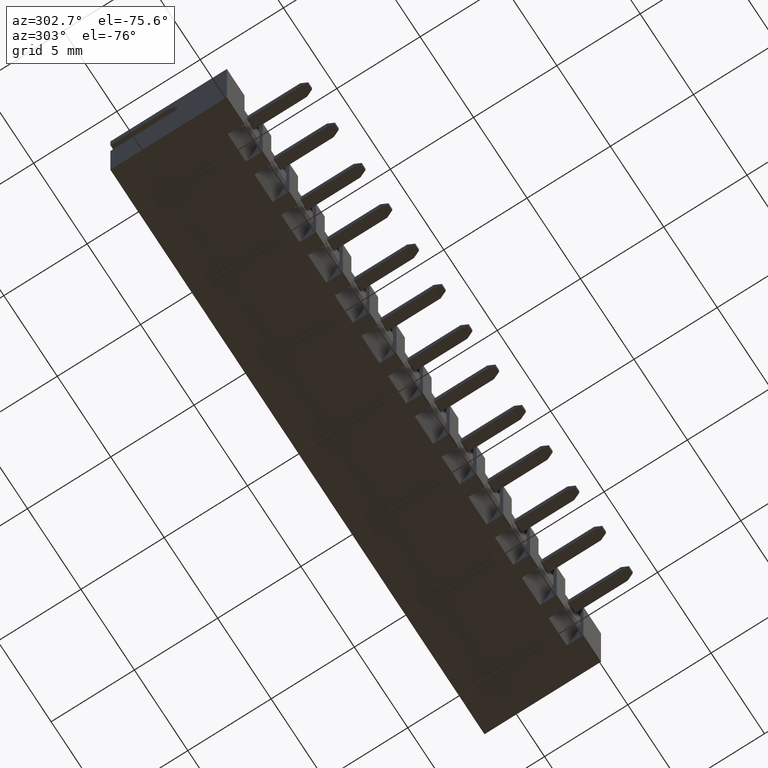
[diagram: clean part render]
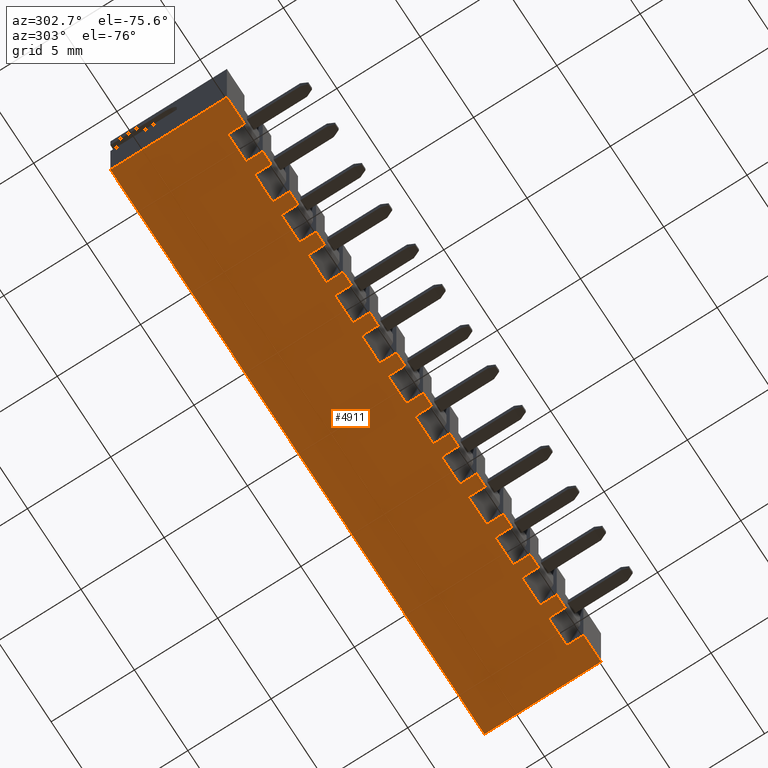
[diagram: same view with one face highlighted and labeled with its STEP entity id]
A machine part, auxiliary view. The second image highlights one B-rep face of the part: STEP entity #4911.
In plain terms, the highlighted planar face has unit normal (0, 0, 1).
Its self-contained STEP definition (entity closure, byte-faithful):
#3 = LINE ( 'NONE', #2143, #1955 ) ;
#20 = ORIENTED_EDGE ( 'NONE', *, *, #1837, .F. ) ;
#70 = VERTEX_POINT ( 'NONE', #2569 ) ;
#75 = EDGE_CURVE ( 'NONE', #5709, #2443, #1101, .T. ) ;
#116 = CARTESIAN_POINT ( 'NONE',  ( -17.49999999999999645, 7.000000000000000000, -2.875000000000000000 ) ) ;
#120 = EDGE_CURVE ( 'NONE', #2217, #2089, #3511, .T. ) ;
#126 = CARTESIAN_POINT ( 'NONE',  ( -9.149999999999993250, 1.000000000000000000, -2.875000000000000000 ) ) ;
#132 = DIRECTION ( 'NONE',  ( -0.000000000000000000, 1.000000000000000000, -0.000000000000000000 ) ) ;
#146 = CARTESIAN_POINT ( 'NONE',  ( -5.849999999999992539, 0.000000000000000000, -2.875000000000000000 ) ) ;
#149 = VECTOR ( 'NONE', #3602, 1000.000000000000000 ) ;
#169 = ORIENTED_EDGE ( 'NONE', *, *, #4397, .F. ) ;
#170 = CARTESIAN_POINT ( 'NONE',  ( -8.349999999999990763, 1.000000000000000000, -2.875000000000000000 ) ) ;
#192 = CARTESIAN_POINT ( 'NONE',  ( -5.849999999999992539, 1.000000000000000000, -2.875000000000000000 ) ) ;
#201 = CARTESIAN_POINT ( 'NONE',  ( -15.84999999999998899, 1.000000000000000000, -2.875000000000000000 ) ) ;
#206 = ORIENTED_EDGE ( 'NONE', *, *, #3687, .F. ) ;
#226 = AXIS2_PLACEMENT_3D ( 'NONE', #2868, #4925, #4518 ) ;
#253 = LINE ( 'NONE', #2921, #3143 ) ;
#271 = CARTESIAN_POINT ( 'NONE',  ( -3.349999999999993427, 1.000000000000000000, -2.875000000000000000 ) ) ;
#287 = VERTEX_POINT ( 'NONE', #3069 ) ;
#291 = VERTEX_POINT ( 'NONE', #661 ) ;
#322 = VERTEX_POINT ( 'NONE', #3333 ) ;
#329 = CARTESIAN_POINT ( 'NONE',  ( 3.350000000000007638, 1.000000000000000000, -2.875000000000000000 ) ) ;
#356 = CARTESIAN_POINT ( 'NONE',  ( -0.8499999999999913181, 1.000000000000000000, -2.875000000000000000 ) ) ;
#358 = CARTESIAN_POINT ( 'NONE',  ( 14.15000000000000568, 1.000000000000000000, -2.875000000000000000 ) ) ;
#371 = EDGE_CURVE ( 'NONE', #6492, #1381, #791, .T. ) ;
#382 = VECTOR ( 'NONE', #132, 1000.000000000000000 ) ;
#385 = LINE ( 'NONE', #3145, #3150 ) ;
#395 = CARTESIAN_POINT ( 'NONE',  ( -11.64999999999999147, 1.000000000000000000, -2.875000000000000000 ) ) ;
#396 = LINE ( 'NONE', #545, #1649 ) ;
#417 = EDGE_CURVE ( 'NONE', #704, #1278, #5144, .T. ) ;
#438 = LINE ( 'NONE', #1517, #3140 ) ;
#443 = LINE ( 'NONE', #1599, #149 ) ;
#472 = EDGE_CURVE ( 'NONE', #5907, #287, #5629, .T. ) ;
#491 = LINE ( 'NONE', #1079, #1751 ) ;
#523 = VECTOR ( 'NONE', #5255, 1000.000000000000000 ) ;
#525 = ORIENTED_EDGE ( 'NONE', *, *, #4555, .T. ) ;
#534 = VERTEX_POINT ( 'NONE', #1590 ) ;
#545 = CARTESIAN_POINT ( 'NONE',  ( 17.50000000000000711, 7.000000000000000000, -2.875000000000000000 ) ) ;
#550 = VERTEX_POINT ( 'NONE', #2273 ) ;
#559 = ORIENTED_EDGE ( 'NONE', *, *, #2533, .F. ) ;
#569 = VERTEX_POINT ( 'NONE', #146 ) ;
#570 = DIRECTION ( 'NONE',  ( 1.000000000000000000, -0.000000000000000000, -0.000000000000000000 ) ) ;
#578 = EDGE_CURVE ( 'NONE', #550, #2217, #653, .T. ) ;
#598 = EDGE_CURVE ( 'NONE', #3893, #2089, #1790, .T. ) ;
#631 = VECTOR ( 'NONE', #3080, 1000.000000000000000 ) ;
#653 = LINE ( 'NONE', #6432, #3705 ) ;
#660 = LINE ( 'NONE', #116, #4668 ) ;
#661 = CARTESIAN_POINT ( 'NONE',  ( 11.65000000000000746, 1.000000000000000000, -2.875000000000000000 ) ) ;
#677 = DIRECTION ( 'NONE',  ( 1.000000000000000000, -0.000000000000000000, -0.000000000000000000 ) ) ;
#702 = ORIENTED_EDGE ( 'NONE', *, *, #75, .T. ) ;
#704 = VERTEX_POINT ( 'NONE', #4935 ) ;
#742 = VECTOR ( 'NONE', #3054, 1000.000000000000000 ) ;
#749 = DIRECTION ( 'NONE',  ( -1.000000000000000000, -0.000000000000000000, -0.000000000000000000 ) ) ;
#753 = DIRECTION ( 'NONE',  ( 1.000000000000000000, -0.000000000000000000, -0.000000000000000000 ) ) ;
#770 = ORIENTED_EDGE ( 'NONE', *, *, #3026, .T. ) ;
#791 = LINE ( 'NONE', #2892, #6079 ) ;
#808 = DIRECTION ( 'NONE',  ( -0.000000000000000000, 1.000000000000000000, -0.000000000000000000 ) ) ;
#820 = CARTESIAN_POINT ( 'NONE',  ( -17.49999999999999645, 0.000000000000000000, -2.875000000000000000 ) ) ;
#850 = CARTESIAN_POINT ( 'NONE',  ( -4.149999999999992362, 1.000000000000000000, -2.875000000000000000 ) ) ;
#889 = DIRECTION ( 'NONE',  ( -0.000000000000000000, 1.000000000000000000, -0.000000000000000000 ) ) ;
#897 = VERTEX_POINT ( 'NONE', #3535 ) ;
#898 = DIRECTION ( 'NONE',  ( -1.000000000000000000, -0.000000000000000000, -0.000000000000000000 ) ) ;
#899 = VERTEX_POINT ( 'NONE', #5636 ) ;
#981 = CARTESIAN_POINT ( 'NONE',  ( -0.8499999999999913181, 1.000000000000000000, -2.875000000000000000 ) ) ;
#1035 = EDGE_CURVE ( 'NONE', #4885, #1362, #660, .T. ) ;
#1037 = CARTESIAN_POINT ( 'NONE',  ( -14.14999999999999147, 0.000000000000000000, -2.875000000000000000 ) ) ;
#1051 = VERTEX_POINT ( 'NONE', #1731 ) ;
#1079 = CARTESIAN_POINT ( 'NONE',  ( -17.49999999999999645, 0.000000000000000000, -2.875000000000000000 ) ) ;
#1099 = CARTESIAN_POINT ( 'NONE',  ( -15.84999999999998899, 1.000000000000000000, -2.875000000000000000 ) ) ;
#1101 = LINE ( 'NONE', #5647, #523 ) ;
#1149 = DIRECTION ( 'NONE',  ( -1.000000000000000000, -0.000000000000000000, -0.000000000000000000 ) ) ;
#1166 = VECTOR ( 'NONE', #3803, 1000.000000000000000 ) ;
#1179 = ORIENTED_EDGE ( 'NONE', *, *, #4846, .T. ) ;
#1187 = LINE ( 'NONE', #1252, #3311 ) ;
#1211 = EDGE_CURVE ( 'NONE', #4885, #6012, #396, .T. ) ;
#1219 = CARTESIAN_POINT ( 'NONE',  ( -8.349999999999990763, 1.000000000000000000, -2.875000000000000000 ) ) ;
#1252 = CARTESIAN_POINT ( 'NONE',  ( -17.49999999999999645, 0.000000000000000000, -2.875000000000000000 ) ) ;
#1255 = VECTOR ( 'NONE', #4132, 1000.000000000000000 ) ;
#1264 = DIRECTION ( 'NONE',  ( -0.000000000000000000, 1.000000000000000000, -0.000000000000000000 ) ) ;
#1278 = VERTEX_POINT ( 'NONE', #2006 ) ;
#1286 = PLANE ( 'NONE',  #226 ) ;
#1314 = DIRECTION ( 'NONE',  ( -1.000000000000000000, -0.000000000000000000, -0.000000000000000000 ) ) ;
#1319 = CARTESIAN_POINT ( 'NONE',  ( -17.49999999999999645, 0.000000000000000000, -2.875000000000000000 ) ) ;
#1328 = LINE ( 'NONE', #3996, #2891 ) ;
#1342 = VECTOR ( 'NONE', #5452, 1000.000000000000000 ) ;
#1356 = EDGE_CURVE ( 'NONE', #4632, #899, #491, .T. ) ;
#1362 = VERTEX_POINT ( 'NONE', #3582 ) ;
#1381 = VERTEX_POINT ( 'NONE', #6654 ) ;
#1386 = VECTOR ( 'NONE', #2552, 1000.000000000000000 ) ;
#1412 = CARTESIAN_POINT ( 'NONE',  ( 13.35000000000000853, 1.000000000000000000, -2.875000000000000000 ) ) ;
#1419 = LINE ( 'NONE', #5568, #3775 ) ;
#1420 = CARTESIAN_POINT ( 'NONE',  ( -9.149999999999993250, 1.000000000000000000, -2.875000000000000000 ) ) ;
#1428 = CARTESIAN_POINT ( 'NONE',  ( -1.649999999999993472, 1.000000000000000000, -2.875000000000000000 ) ) ;
#1434 = DIRECTION ( 'NONE',  ( 1.000000000000000000, -0.000000000000000000, -0.000000000000000000 ) ) ;
#1441 = EDGE_CURVE ( 'NONE', #6523, #3370, #6687, .T. ) ;
#1471 = LINE ( 'NONE', #1869, #6356 ) ;
#1495 = VECTOR ( 'NONE', #5698, 1000.000000000000000 ) ;
#1503 = ORIENTED_EDGE ( 'NONE', *, *, #3770, .F. ) ;
#1517 = CARTESIAN_POINT ( 'NONE',  ( 4.150000000000007461, 1.000000000000000000, -2.875000000000000000 ) ) ;
#1533 = EDGE_CURVE ( 'NONE', #899, #4455, #3244, .T. ) ;
#1561 = CARTESIAN_POINT ( 'NONE',  ( 10.85000000000000853, 1.000000000000000000, -2.875000000000000000 ) ) ;
#1563 = VERTEX_POINT ( 'NONE', #3856 ) ;
#1590 = CARTESIAN_POINT ( 'NONE',  ( 11.65000000000000746, 0.000000000000000000, -2.875000000000000000 ) ) ;
#1599 = CARTESIAN_POINT ( 'NONE',  ( -8.349999999999990763, 1.000000000000000000, -2.875000000000000000 ) ) ;
#1602 = VERTEX_POINT ( 'NONE', #271 ) ;
#1611 = CARTESIAN_POINT ( 'NONE',  ( 0.8500000000000069722, 0.000000000000000000, -2.875000000000000000 ) ) ;
#1643 = LINE ( 'NONE', #5712, #6057 ) ;
#1649 = VECTOR ( 'NONE', #5661, 1000.000000000000000 ) ;
#1651 = CARTESIAN_POINT ( 'NONE',  ( -17.49999999999999645, 0.000000000000000000, -2.875000000000000000 ) ) ;
#1661 = LINE ( 'NONE', #3736, #6169 ) ;
#1664 = CARTESIAN_POINT ( 'NONE',  ( 9.150000000000009237, 0.000000000000000000, -2.875000000000000000 ) ) ;
#1680 = CARTESIAN_POINT ( 'NONE',  ( -13.34999999999999254, 1.000000000000000000, -2.875000000000000000 ) ) ;
#1700 = EDGE_CURVE ( 'NONE', #70, #5709, #1419, .T. ) ;
#1731 = CARTESIAN_POINT ( 'NONE',  ( -3.349999999999993427, 0.000000000000000000, -2.875000000000000000 ) ) ;
#1750 = LINE ( 'NONE', #1219, #3201 ) ;
#1751 = VECTOR ( 'NONE', #5785, 1000.000000000000000 ) ;
#1757 = CARTESIAN_POINT ( 'NONE',  ( 10.85000000000000853, 0.000000000000000000, -2.875000000000000000 ) ) ;
#1761 = ORIENTED_EDGE ( 'NONE', *, *, #3808, .T. ) ;
#1790 = LINE ( 'NONE', #2846, #2292 ) ;
#1797 = EDGE_CURVE ( 'NONE', #6676, #3655, #1471, .T. ) ;
#1801 = DIRECTION ( 'NONE',  ( -0.000000000000000000, 1.000000000000000000, -0.000000000000000000 ) ) ;
#1811 = DIRECTION ( 'NONE',  ( -1.000000000000000000, -0.000000000000000000, -0.000000000000000000 ) ) ;
#1815 = DIRECTION ( 'NONE',  ( -1.000000000000000000, -0.000000000000000000, -0.000000000000000000 ) ) ;
#1817 = VERTEX_POINT ( 'NONE', #3495 ) ;
#1837 = EDGE_CURVE ( 'NONE', #322, #1381, #5555, .T. ) ;
#1838 = ORIENTED_EDGE ( 'NONE', *, *, #4489, .T. ) ;
#1865 = CARTESIAN_POINT ( 'NONE',  ( -14.14999999999999147, 1.000000000000000000, -2.875000000000000000 ) ) ;
#1869 = CARTESIAN_POINT ( 'NONE',  ( -15.84999999999998899, 1.000000000000000000, -2.875000000000000000 ) ) ;
#1915 = VECTOR ( 'NONE', #6273, 1000.000000000000000 ) ;
#1917 = CARTESIAN_POINT ( 'NONE',  ( 9.150000000000009237, 1.000000000000000000, -2.875000000000000000 ) ) ;
#1955 = VECTOR ( 'NONE', #3184, 1000.000000000000000 ) ;
#1978 = ORIENTED_EDGE ( 'NONE', *, *, #3981, .T. ) ;
#2003 = VECTOR ( 'NONE', #1314, 1000.000000000000000 ) ;
#2006 = CARTESIAN_POINT ( 'NONE',  ( 13.35000000000000853, 1.000000000000000000, -2.875000000000000000 ) ) ;
#2025 = ORIENTED_EDGE ( 'NONE', *, *, #1700, .T. ) ;
#2038 = CARTESIAN_POINT ( 'NONE',  ( 8.350000000000010303, 0.000000000000000000, -2.875000000000000000 ) ) ;
#2045 = VECTOR ( 'NONE', #3013, 1000.000000000000000 ) ;
#2053 = LINE ( 'NONE', #5596, #3565 ) ;
#2067 = CARTESIAN_POINT ( 'NONE',  ( 4.150000000000007461, 1.000000000000000000, -2.875000000000000000 ) ) ;
#2089 = VERTEX_POINT ( 'NONE', #2822 ) ;
#2111 = EDGE_CURVE ( 'NONE', #1602, #4455, #2384, .T. ) ;
#2117 = CARTESIAN_POINT ( 'NONE',  ( -14.14999999999999147, 1.000000000000000000, -2.875000000000000000 ) ) ;
#2143 = CARTESIAN_POINT ( 'NONE',  ( -11.64999999999999147, 1.000000000000000000, -2.875000000000000000 ) ) ;
#2165 = CARTESIAN_POINT ( 'NONE',  ( 11.65000000000000746, 1.000000000000000000, -2.875000000000000000 ) ) ;
#2199 = CARTESIAN_POINT ( 'NONE',  ( -1.649999999999993472, 1.000000000000000000, -2.875000000000000000 ) ) ;
#2200 = DIRECTION ( 'NONE',  ( -0.000000000000000000, 1.000000000000000000, -0.000000000000000000 ) ) ;
#2210 = CARTESIAN_POINT ( 'NONE',  ( 11.65000000000000746, 1.000000000000000000, -2.875000000000000000 ) ) ;
#2217 = VERTEX_POINT ( 'NONE', #1611 ) ;
#2229 = VECTOR ( 'NONE', #4456, 1000.000000000000000 ) ;
#2238 = DIRECTION ( 'NONE',  ( 1.000000000000000000, -0.000000000000000000, -0.000000000000000000 ) ) ;
#2239 = ORIENTED_EDGE ( 'NONE', *, *, #5976, .F. ) ;
#2245 = DIRECTION ( 'NONE',  ( -1.000000000000000000, -0.000000000000000000, -0.000000000000000000 ) ) ;
#2273 = CARTESIAN_POINT ( 'NONE',  ( 1.650000000000007683, 0.000000000000000000, -2.875000000000000000 ) ) ;
#2277 = VECTOR ( 'NONE', #2879, 1000.000000000000000 ) ;
#2286 = CARTESIAN_POINT ( 'NONE',  ( 4.150000000000007461, 1.000000000000000000, -2.875000000000000000 ) ) ;
#2292 = VECTOR ( 'NONE', #2238, 1000.000000000000000 ) ;
#2307 = CARTESIAN_POINT ( 'NONE',  ( 8.350000000000008527, 1.000000000000000000, -2.875000000000000000 ) ) ;
#2310 = CARTESIAN_POINT ( 'NONE',  ( -10.84999999999999254, 0.000000000000000000, -2.875000000000000000 ) ) ;
#2356 = LINE ( 'NONE', #5980, #2003 ) ;
#2384 = LINE ( 'NONE', #4437, #6151 ) ;
#2404 = CARTESIAN_POINT ( 'NONE',  ( -17.49999999999999645, 0.000000000000000000, -2.875000000000000000 ) ) ;
#2427 = DIRECTION ( 'NONE',  ( -0.000000000000000000, 1.000000000000000000, -0.000000000000000000 ) ) ;
#2443 = VERTEX_POINT ( 'NONE', #6238 ) ;
#2475 = DIRECTION ( 'NONE',  ( -1.000000000000000000, -0.000000000000000000, -0.000000000000000000 ) ) ;
#2523 = ORIENTED_EDGE ( 'NONE', *, *, #4112, .T. ) ;
#2533 = EDGE_CURVE ( 'NONE', #3229, #6676, #2760, .T. ) ;
#2552 = DIRECTION ( 'NONE',  ( -1.000000000000000000, -0.000000000000000000, -0.000000000000000000 ) ) ;
#2553 = ORIENTED_EDGE ( 'NONE', *, *, #3039, .T. ) ;
#2569 = CARTESIAN_POINT ( 'NONE',  ( 6.650000000000008349, 0.000000000000000000, -2.875000000000000000 ) ) ;
#2599 = ORIENTED_EDGE ( 'NONE', *, *, #120, .T. ) ;
#2616 = ORIENTED_EDGE ( 'NONE', *, *, #6337, .T. ) ;
#2628 = VERTEX_POINT ( 'NONE', #6078 ) ;
#2643 = CARTESIAN_POINT ( 'NONE',  ( -4.149999999999992362, 0.000000000000000000, -2.875000000000000000 ) ) ;
#2656 = CARTESIAN_POINT ( 'NONE',  ( -17.49999999999999645, 0.000000000000000000, -2.875000000000000000 ) ) ;
#2678 = LINE ( 'NONE', #2165, #3085 ) ;
#2702 = CARTESIAN_POINT ( 'NONE',  ( 4.150000000000007461, 0.000000000000000000, -2.875000000000000000 ) ) ;
#2726 = VECTOR ( 'NONE', #889, 1000.000000000000000 ) ;
#2738 = DIRECTION ( 'NONE',  ( -0.000000000000000000, 1.000000000000000000, -0.000000000000000000 ) ) ;
#2749 = ORIENTED_EDGE ( 'NONE', *, *, #5471, .F. ) ;
#2760 = LINE ( 'NONE', #1099, #6051 ) ;
#2769 = EDGE_CURVE ( 'NONE', #6645, #287, #4084, .T. ) ;
#2783 = VECTOR ( 'NONE', #4877, 1000.000000000000000 ) ;
#2785 = VERTEX_POINT ( 'NONE', #1561 ) ;
#2819 = EDGE_CURVE ( 'NONE', #1817, #4936, #2053, .T. ) ;
#2822 = CARTESIAN_POINT ( 'NONE',  ( 0.8500000000000086375, 1.000000000000000000, -2.875000000000000000 ) ) ;
#2827 = VECTOR ( 'NONE', #5608, 1000.000000000000000 ) ;
#2838 = EDGE_CURVE ( 'NONE', #6189, #4753, #443, .T. ) ;
#2846 = CARTESIAN_POINT ( 'NONE',  ( -0.8499999999999913181, 1.000000000000000000, -2.875000000000000000 ) ) ;
#2853 = DIRECTION ( 'NONE',  ( 1.000000000000000000, -0.000000000000000000, -0.000000000000000000 ) ) ;
#2868 = CARTESIAN_POINT ( 'NONE',  ( -17.49999999999999645, 7.000000000000000000, -2.875000000000000000 ) ) ;
#2879 = DIRECTION ( 'NONE',  ( -0.000000000000000000, 1.000000000000000000, -0.000000000000000000 ) ) ;
#2891 = VECTOR ( 'NONE', #2475, 1000.000000000000000 ) ;
#2892 = CARTESIAN_POINT ( 'NONE',  ( 15.85000000000000675, 1.000000000000000000, -2.875000000000000000 ) ) ;
#2910 = ORIENTED_EDGE ( 'NONE', *, *, #5052, .F. ) ;
#2918 = LINE ( 'NONE', #1865, #3023 ) ;
#2921 = CARTESIAN_POINT ( 'NONE',  ( 1.650000000000007683, 1.000000000000000000, -2.875000000000000000 ) ) ;
#2941 = VECTOR ( 'NONE', #5055, 1000.000000000000000 ) ;
#3013 = DIRECTION ( 'NONE',  ( 1.000000000000000000, -0.000000000000000000, -0.000000000000000000 ) ) ;
#3023 = VECTOR ( 'NONE', #1264, 1000.000000000000000 ) ;
#3026 = EDGE_CURVE ( 'NONE', #4983, #4025, #5288, .T. ) ;
#3027 = CARTESIAN_POINT ( 'NONE',  ( 1.650000000000007683, 1.000000000000000000, -2.875000000000000000 ) ) ;
#3039 = EDGE_CURVE ( 'NONE', #1051, #4495, #1643, .T. ) ;
#3040 = CARTESIAN_POINT ( 'NONE',  ( 9.150000000000009237, 1.000000000000000000, -2.875000000000000000 ) ) ;
#3041 = ORIENTED_EDGE ( 'NONE', *, *, #578, .T. ) ;
#3044 = VERTEX_POINT ( 'NONE', #1037 ) ;
#3054 = DIRECTION ( 'NONE',  ( -0.000000000000000000, 1.000000000000000000, -0.000000000000000000 ) ) ;
#3056 = LINE ( 'NONE', #4208, #1495 ) ;
#3060 = DIRECTION ( 'NONE',  ( 1.000000000000000000, -0.000000000000000000, -0.000000000000000000 ) ) ;
#3069 = CARTESIAN_POINT ( 'NONE',  ( 3.350000000000007638, 1.000000000000000000, -2.875000000000000000 ) ) ;
#3073 = LINE ( 'NONE', #3547, #2827 ) ;
#3080 = DIRECTION ( 'NONE',  ( 1.000000000000000000, -0.000000000000000000, -0.000000000000000000 ) ) ;
#3085 = VECTOR ( 'NONE', #2738, 1000.000000000000000 ) ;
#3090 = EDGE_CURVE ( 'NONE', #2628, #4936, #4816, .T. ) ;
#3115 = CARTESIAN_POINT ( 'NONE',  ( -13.34999999999999254, 0.000000000000000000, -2.875000000000000000 ) ) ;
#3125 = ORIENTED_EDGE ( 'NONE', *, *, #3090, .T. ) ;
#3140 = VECTOR ( 'NONE', #5178, 1000.000000000000000 ) ;
#3143 = VECTOR ( 'NONE', #5037, 1000.000000000000000 ) ;
#3145 = CARTESIAN_POINT ( 'NONE',  ( -17.49999999999999645, 0.000000000000000000, -2.875000000000000000 ) ) ;
#3150 = VECTOR ( 'NONE', #5652, 1000.000000000000000 ) ;
#3184 = DIRECTION ( 'NONE',  ( -0.000000000000000000, 1.000000000000000000, -0.000000000000000000 ) ) ;
#3187 = EDGE_CURVE ( 'NONE', #3044, #3655, #2918, .T. ) ;
#3201 = VECTOR ( 'NONE', #677, 1000.000000000000000 ) ;
#3229 = VERTEX_POINT ( 'NONE', #4972 ) ;
#3244 = LINE ( 'NONE', #2199, #4306 ) ;
#3287 = ORIENTED_EDGE ( 'NONE', *, *, #6092, .F. ) ;
#3311 = VECTOR ( 'NONE', #1815, 1000.000000000000000 ) ;
#3331 = LINE ( 'NONE', #4374, #1342 ) ;
#3333 = CARTESIAN_POINT ( 'NONE',  ( 14.15000000000000568, 1.000000000000000000, -2.875000000000000000 ) ) ;
#3370 = VERTEX_POINT ( 'NONE', #2286 ) ;
#3383 = ORIENTED_EDGE ( 'NONE', *, *, #3605, .T. ) ;
#3420 = LINE ( 'NONE', #5479, #2277 ) ;
#3491 = EDGE_CURVE ( 'NONE', #4983, #4863, #3503, .T. ) ;
#3495 = CARTESIAN_POINT ( 'NONE',  ( -10.84999999999999254, 1.000000000000000000, -2.875000000000000000 ) ) ;
#3503 = LINE ( 'NONE', #5046, #5624 ) ;
#3511 = LINE ( 'NONE', #5605, #2941 ) ;
#3535 = CARTESIAN_POINT ( 'NONE',  ( -6.649999999999990585, 1.000000000000000000, -2.875000000000000000 ) ) ;
#3542 = VERTEX_POINT ( 'NONE', #4573 ) ;
#3544 = DIRECTION ( 'NONE',  ( 1.000000000000000000, -0.000000000000000000, -0.000000000000000000 ) ) ;
#3547 = CARTESIAN_POINT ( 'NONE',  ( -4.149999999999992362, 1.000000000000000000, -2.875000000000000000 ) ) ;
#3557 = LINE ( 'NONE', #5241, #631 ) ;
#3565 = VECTOR ( 'NONE', #6712, 1000.000000000000000 ) ;
#3582 = CARTESIAN_POINT ( 'NONE',  ( -17.49999999999999645, 7.000000000000000000, -2.875000000000000000 ) ) ;
#3600 = ORIENTED_EDGE ( 'NONE', *, *, #2769, .F. ) ;
#3602 = DIRECTION ( 'NONE',  ( -0.000000000000000000, 1.000000000000000000, -0.000000000000000000 ) ) ;
#3603 = ORIENTED_EDGE ( 'NONE', *, *, #3920, .F. ) ;
#3605 = EDGE_CURVE ( 'NONE', #534, #5584, #6275, .T. ) ;
#3621 = EDGE_CURVE ( 'NONE', #6214, #322, #3056, .T. ) ;
#3646 = ORIENTED_EDGE ( 'NONE', *, *, #5769, .T. ) ;
#3655 = VERTEX_POINT ( 'NONE', #2117 ) ;
#3678 = ORIENTED_EDGE ( 'NONE', *, *, #3187, .T. ) ;
#3687 = EDGE_CURVE ( 'NONE', #1362, #3542, #1661, .T. ) ;
#3692 = EDGE_CURVE ( 'NONE', #3370, #2443, #438, .T. ) ;
#3705 = VECTOR ( 'NONE', #749, 1000.000000000000000 ) ;
#3716 = DIRECTION ( 'NONE',  ( -1.000000000000000000, -0.000000000000000000, -0.000000000000000000 ) ) ;
#3736 = CARTESIAN_POINT ( 'NONE',  ( -17.49999999999999645, 7.000000000000000000, -2.875000000000000000 ) ) ;
#3770 = EDGE_CURVE ( 'NONE', #291, #1278, #5416, .T. ) ;
#3775 = VECTOR ( 'NONE', #898, 1000.000000000000000 ) ;
#3786 = LINE ( 'NONE', #3824, #4493 ) ;
#3803 = DIRECTION ( 'NONE',  ( -0.000000000000000000, 1.000000000000000000, -0.000000000000000000 ) ) ;
#3807 = CARTESIAN_POINT ( 'NONE',  ( 6.650000000000008349, 1.000000000000000000, -2.875000000000000000 ) ) ;
#3808 = EDGE_CURVE ( 'NONE', #4025, #5946, #6466, .T. ) ;
#3824 = CARTESIAN_POINT ( 'NONE',  ( -10.84999999999999254, 1.000000000000000000, -2.875000000000000000 ) ) ;
#3856 = CARTESIAN_POINT ( 'NONE',  ( -11.64999999999999147, 0.000000000000000000, -2.875000000000000000 ) ) ;
#3890 = CARTESIAN_POINT ( 'NONE',  ( 14.15000000000000568, 0.000000000000000000, -2.875000000000000000 ) ) ;
#3893 = VERTEX_POINT ( 'NONE', #356 ) ;
#3898 = CARTESIAN_POINT ( 'NONE',  ( -13.34999999999999254, 1.000000000000000000, -2.875000000000000000 ) ) ;
#3920 = EDGE_CURVE ( 'NONE', #550, #6645, #253, .T. ) ;
#3952 = VECTOR ( 'NONE', #6545, 1000.000000000000000 ) ;
#3955 = ORIENTED_EDGE ( 'NONE', *, *, #5198, .F. ) ;
#3965 = VECTOR ( 'NONE', #808, 1000.000000000000000 ) ;
#3969 = ORIENTED_EDGE ( 'NONE', *, *, #1797, .F. ) ;
#3981 = EDGE_CURVE ( 'NONE', #6012, #6492, #6033, .T. ) ;
#3996 = CARTESIAN_POINT ( 'NONE',  ( -17.49999999999999645, 0.000000000000000000, -2.875000000000000000 ) ) ;
#4014 = VECTOR ( 'NONE', #5484, 1000.000000000000000 ) ;
#4017 = VERTEX_POINT ( 'NONE', #4201 ) ;
#4025 = VERTEX_POINT ( 'NONE', #2038 ) ;
#4050 = ORIENTED_EDGE ( 'NONE', *, *, #2819, .F. ) ;
#4060 = ORIENTED_EDGE ( 'NONE', *, *, #371, .T. ) ;
#4081 = VECTOR ( 'NONE', #570, 1000.000000000000000 ) ;
#4084 = LINE ( 'NONE', #3027, #6274 ) ;
#4085 = ORIENTED_EDGE ( 'NONE', *, *, #1533, .T. ) ;
#4112 = EDGE_CURVE ( 'NONE', #1563, #5383, #3, .T. ) ;
#4116 = ORIENTED_EDGE ( 'NONE', *, *, #5117, .F. ) ;
#4117 = EDGE_CURVE ( 'NONE', #5641, #5383, #3557, .T. ) ;
#4132 = DIRECTION ( 'NONE',  ( -0.000000000000000000, 1.000000000000000000, -0.000000000000000000 ) ) ;
#4156 = VERTEX_POINT ( 'NONE', #3115 ) ;
#4195 = LINE ( 'NONE', #3040, #4509 ) ;
#4201 = CARTESIAN_POINT ( 'NONE',  ( 6.650000000000008349, 1.000000000000000000, -2.875000000000000000 ) ) ;
#4208 = CARTESIAN_POINT ( 'NONE',  ( 14.15000000000000568, 1.000000000000000000, -2.875000000000000000 ) ) ;
#4282 = VECTOR ( 'NONE', #2853, 1000.000000000000000 ) ;
#4306 = VECTOR ( 'NONE', #5299, 1000.000000000000000 ) ;
#4315 = DIRECTION ( 'NONE',  ( -0.000000000000000000, 1.000000000000000000, -0.000000000000000000 ) ) ;
#4319 = VECTOR ( 'NONE', #4315, 1000.000000000000000 ) ;
#4329 = VECTOR ( 'NONE', #753, 1000.000000000000000 ) ;
#4364 = ORIENTED_EDGE ( 'NONE', *, *, #6719, .T. ) ;
#4373 = VERTEX_POINT ( 'NONE', #850 ) ;
#4374 = CARTESIAN_POINT ( 'NONE',  ( -3.349999999999993427, 1.000000000000000000, -2.875000000000000000 ) ) ;
#4393 = VERTEX_POINT ( 'NONE', #4965 ) ;
#4397 = EDGE_CURVE ( 'NONE', #70, #4017, #3420, .T. ) ;
#4425 = EDGE_CURVE ( 'NONE', #5096, #1563, #2356, .T. ) ;
#4437 = CARTESIAN_POINT ( 'NONE',  ( -3.349999999999993427, 1.000000000000000000, -2.875000000000000000 ) ) ;
#4454 = FACE_OUTER_BOUND ( 'NONE', #4956, .T. ) ;
#4455 = VERTEX_POINT ( 'NONE', #1428 ) ;
#4456 = DIRECTION ( 'NONE',  ( -1.000000000000000000, -0.000000000000000000, -0.000000000000000000 ) ) ;
#4481 = CARTESIAN_POINT ( 'NONE',  ( 10.85000000000000853, 1.000000000000000000, -2.875000000000000000 ) ) ;
#4489 = EDGE_CURVE ( 'NONE', #4495, #4373, #3073, .T. ) ;
#4493 = VECTOR ( 'NONE', #2200, 1000.000000000000000 ) ;
#4495 = VERTEX_POINT ( 'NONE', #2643 ) ;
#4509 = VECTOR ( 'NONE', #5757, 1000.000000000000000 ) ;
#4518 = DIRECTION ( 'NONE',  ( 1.000000000000000000, 0.000000000000000000, -0.000000000000000000 ) ) ;
#4521 = LINE ( 'NONE', #2404, #2229 ) ;
#4555 = EDGE_CURVE ( 'NONE', #569, #5456, #385, .T. ) ;
#4573 = CARTESIAN_POINT ( 'NONE',  ( -17.49999999999999645, 0.000000000000000000, -2.875000000000000000 ) ) ;
#4583 = CARTESIAN_POINT ( 'NONE',  ( 15.85000000000001030, 0.000000000000000000, -2.875000000000000000 ) ) ;
#4584 = EDGE_CURVE ( 'NONE', #4863, #2785, #4195, .T. ) ;
#4621 = EDGE_CURVE ( 'NONE', #5096, #1817, #3786, .T. ) ;
#4632 = VERTEX_POINT ( 'NONE', #5889 ) ;
#4634 = EDGE_CURVE ( 'NONE', #534, #291, #2678, .T. ) ;
#4665 = CARTESIAN_POINT ( 'NONE',  ( 3.350000000000005862, 0.000000000000000000, -2.875000000000000000 ) ) ;
#4668 = VECTOR ( 'NONE', #2245, 1000.000000000000000 ) ;
#4675 = EDGE_CURVE ( 'NONE', #6189, #2628, #4789, .T. ) ;
#4701 = CARTESIAN_POINT ( 'NONE',  ( -5.849999999999992539, 1.000000000000000000, -2.875000000000000000 ) ) ;
#4731 = LINE ( 'NONE', #4701, #4081 ) ;
#4741 = ORIENTED_EDGE ( 'NONE', *, *, #4634, .F. ) ;
#4748 = DIRECTION ( 'NONE',  ( -0.000000000000000000, 1.000000000000000000, -0.000000000000000000 ) ) ;
#4753 = VERTEX_POINT ( 'NONE', #170 ) ;
#4789 = LINE ( 'NONE', #1651, #5133 ) ;
#4816 = LINE ( 'NONE', #126, #4319 ) ;
#4838 = LINE ( 'NONE', #3807, #4282 ) ;
#4846 = EDGE_CURVE ( 'NONE', #6214, #704, #6580, .T. ) ;
#4863 = VERTEX_POINT ( 'NONE', #1917 ) ;
#4877 = DIRECTION ( 'NONE',  ( -0.000000000000000000, 1.000000000000000000, -0.000000000000000000 ) ) ;
#4885 = VERTEX_POINT ( 'NONE', #6052 ) ;
#4911 = ADVANCED_FACE ( 'NONE', ( #4454 ), #1286, .F. ) ;
#4925 = DIRECTION ( 'NONE',  ( 0.000000000000000000, 0.000000000000000000, 1.000000000000000000 ) ) ;
#4935 = CARTESIAN_POINT ( 'NONE',  ( 13.35000000000000853, 0.000000000000000000, -2.875000000000000000 ) ) ;
#4936 = VERTEX_POINT ( 'NONE', #1420 ) ;
#4956 = EDGE_LOOP ( 'NONE', ( #1503, #4741, #3383, #4364, #6729, #5270, #770, #1761, #3955, #169, #2025, #702, #6457, #6643, #5486, #5849, #3600, #3603, #3041, #2599, #5025, #2749, #6661, #4085, #6290, #4116, #2553, #1838, #2239, #2910, #525, #5982, #5329, #4961, #6198, #3125, #4050, #5439, #5787, #2523, #5534, #3287, #3646, #3678, #3969, #559, #2616, #206, #5367, #6656, #1978, #4060, #20, #5103, #1179, #5444 ) ) ;
#4961 = ORIENTED_EDGE ( 'NONE', *, *, #2838, .F. ) ;
#4965 = CARTESIAN_POINT ( 'NONE',  ( -5.849999999999992539, 1.000000000000000000, -2.875000000000000000 ) ) ;
#4972 = CARTESIAN_POINT ( 'NONE',  ( -15.84999999999998899, 0.000000000000000000, -2.875000000000000000 ) ) ;
#4983 = VERTEX_POINT ( 'NONE', #1664 ) ;
#5025 = ORIENTED_EDGE ( 'NONE', *, *, #598, .F. ) ;
#5037 = DIRECTION ( 'NONE',  ( -0.000000000000000000, 1.000000000000000000, -0.000000000000000000 ) ) ;
#5046 = CARTESIAN_POINT ( 'NONE',  ( 9.150000000000009237, 1.000000000000000000, -2.875000000000000000 ) ) ;
#5052 = EDGE_CURVE ( 'NONE', #569, #4393, #5875, .T. ) ;
#5055 = DIRECTION ( 'NONE',  ( -0.000000000000000000, 1.000000000000000000, -0.000000000000000000 ) ) ;
#5096 = VERTEX_POINT ( 'NONE', #2310 ) ;
#5103 = ORIENTED_EDGE ( 'NONE', *, *, #3621, .F. ) ;
#5117 = EDGE_CURVE ( 'NONE', #1051, #1602, #3331, .T. ) ;
#5133 = VECTOR ( 'NONE', #1149, 1000.000000000000000 ) ;
#5144 = LINE ( 'NONE', #1412, #742 ) ;
#5170 = CARTESIAN_POINT ( 'NONE',  ( -6.649999999999990585, 0.000000000000000000, -2.875000000000000000 ) ) ;
#5178 = DIRECTION ( 'NONE',  ( 1.000000000000000000, -0.000000000000000000, -0.000000000000000000 ) ) ;
#5198 = EDGE_CURVE ( 'NONE', #4017, #5946, #4838, .T. ) ;
#5201 = CARTESIAN_POINT ( 'NONE',  ( 17.50000000000000711, 0.000000000000000000, -2.875000000000000000 ) ) ;
#5241 = CARTESIAN_POINT ( 'NONE',  ( -13.34999999999999254, 1.000000000000000000, -2.875000000000000000 ) ) ;
#5255 = DIRECTION ( 'NONE',  ( -0.000000000000000000, 1.000000000000000000, -0.000000000000000000 ) ) ;
#5270 = ORIENTED_EDGE ( 'NONE', *, *, #3491, .F. ) ;
#5288 = LINE ( 'NONE', #6255, #5734 ) ;
#5299 = DIRECTION ( 'NONE',  ( -0.000000000000000000, 1.000000000000000000, -0.000000000000000000 ) ) ;
#5329 = ORIENTED_EDGE ( 'NONE', *, *, #6085, .F. ) ;
#5367 = ORIENTED_EDGE ( 'NONE', *, *, #1035, .F. ) ;
#5369 = LINE ( 'NONE', #1680, #382 ) ;
#5383 = VERTEX_POINT ( 'NONE', #395 ) ;
#5392 = CARTESIAN_POINT ( 'NONE',  ( 1.650000000000007683, 1.000000000000000000, -2.875000000000000000 ) ) ;
#5416 = LINE ( 'NONE', #2210, #4329 ) ;
#5439 = ORIENTED_EDGE ( 'NONE', *, *, #4621, .F. ) ;
#5444 = ORIENTED_EDGE ( 'NONE', *, *, #417, .T. ) ;
#5452 = DIRECTION ( 'NONE',  ( -0.000000000000000000, 1.000000000000000000, -0.000000000000000000 ) ) ;
#5456 = VERTEX_POINT ( 'NONE', #5170 ) ;
#5471 = EDGE_CURVE ( 'NONE', #4632, #3893, #5660, .T. ) ;
#5479 = CARTESIAN_POINT ( 'NONE',  ( 6.650000000000008349, 1.000000000000000000, -2.875000000000000000 ) ) ;
#5484 = DIRECTION ( 'NONE',  ( -1.000000000000000000, -0.000000000000000000, -0.000000000000000000 ) ) ;
#5486 = ORIENTED_EDGE ( 'NONE', *, *, #6205, .T. ) ;
#5506 = LINE ( 'NONE', #5542, #3965 ) ;
#5534 = ORIENTED_EDGE ( 'NONE', *, *, #4117, .F. ) ;
#5542 = CARTESIAN_POINT ( 'NONE',  ( -6.649999999999990585, 1.000000000000000000, -2.875000000000000000 ) ) ;
#5555 = LINE ( 'NONE', #358, #2045 ) ;
#5568 = CARTESIAN_POINT ( 'NONE',  ( -17.49999999999999645, 0.000000000000000000, -2.875000000000000000 ) ) ;
#5584 = VERTEX_POINT ( 'NONE', #1757 ) ;
#5596 = CARTESIAN_POINT ( 'NONE',  ( -10.84999999999999254, 1.000000000000000000, -2.875000000000000000 ) ) ;
#5605 = CARTESIAN_POINT ( 'NONE',  ( 0.8500000000000086375, 1.000000000000000000, -2.875000000000000000 ) ) ;
#5608 = DIRECTION ( 'NONE',  ( -0.000000000000000000, 1.000000000000000000, -0.000000000000000000 ) ) ;
#5624 = VECTOR ( 'NONE', #2427, 1000.000000000000000 ) ;
#5629 = LINE ( 'NONE', #329, #2726 ) ;
#5636 = CARTESIAN_POINT ( 'NONE',  ( -1.649999999999991696, 0.000000000000000000, -2.875000000000000000 ) ) ;
#5641 = VERTEX_POINT ( 'NONE', #3898 ) ;
#5647 = CARTESIAN_POINT ( 'NONE',  ( 5.850000000000007638, 1.000000000000000000, -2.875000000000000000 ) ) ;
#5652 = DIRECTION ( 'NONE',  ( -1.000000000000000000, -0.000000000000000000, -0.000000000000000000 ) ) ;
#5660 = LINE ( 'NONE', #981, #1915 ) ;
#5661 = DIRECTION ( 'NONE',  ( -0.000000000000000000, -1.000000000000000000, -0.000000000000000000 ) ) ;
#5676 = DIRECTION ( 'NONE',  ( -1.000000000000000000, -0.000000000000000000, -0.000000000000000000 ) ) ;
#5698 = DIRECTION ( 'NONE',  ( -0.000000000000000000, 1.000000000000000000, -0.000000000000000000 ) ) ;
#5709 = VERTEX_POINT ( 'NONE', #5963 ) ;
#5712 = CARTESIAN_POINT ( 'NONE',  ( -17.49999999999999645, 0.000000000000000000, -2.875000000000000000 ) ) ;
#5734 = VECTOR ( 'NONE', #3716, 1000.000000000000000 ) ;
#5757 = DIRECTION ( 'NONE',  ( 1.000000000000000000, -0.000000000000000000, -0.000000000000000000 ) ) ;
#5769 = EDGE_CURVE ( 'NONE', #4156, #3044, #1328, .T. ) ;
#5785 = DIRECTION ( 'NONE',  ( -1.000000000000000000, -0.000000000000000000, -0.000000000000000000 ) ) ;
#5787 = ORIENTED_EDGE ( 'NONE', *, *, #4425, .T. ) ;
#5849 = ORIENTED_EDGE ( 'NONE', *, *, #472, .T. ) ;
#5856 = CARTESIAN_POINT ( 'NONE',  ( -8.349999999999990763, 0.000000000000000000, -2.875000000000000000 ) ) ;
#5875 = LINE ( 'NONE', #192, #2783 ) ;
#5889 = CARTESIAN_POINT ( 'NONE',  ( -0.8499999999999913181, 0.000000000000000000, -2.875000000000000000 ) ) ;
#5907 = VERTEX_POINT ( 'NONE', #4665 ) ;
#5946 = VERTEX_POINT ( 'NONE', #6228 ) ;
#5947 = LINE ( 'NONE', #4481, #3952 ) ;
#5963 = CARTESIAN_POINT ( 'NONE',  ( 5.850000000000007638, 0.000000000000000000, -2.875000000000000000 ) ) ;
#5976 = EDGE_CURVE ( 'NONE', #4393, #4373, #4731, .T. ) ;
#5980 = CARTESIAN_POINT ( 'NONE',  ( -17.49999999999999645, 0.000000000000000000, -2.875000000000000000 ) ) ;
#5982 = ORIENTED_EDGE ( 'NONE', *, *, #6332, .T. ) ;
#6011 = VECTOR ( 'NONE', #1811, 1000.000000000000000 ) ;
#6012 = VERTEX_POINT ( 'NONE', #5201 ) ;
#6033 = LINE ( 'NONE', #820, #4014 ) ;
#6051 = VECTOR ( 'NONE', #4748, 1000.000000000000000 ) ;
#6052 = CARTESIAN_POINT ( 'NONE',  ( 17.50000000000000711, 7.000000000000000000, -2.875000000000000000 ) ) ;
#6057 = VECTOR ( 'NONE', #5676, 1000.000000000000000 ) ;
#6078 = CARTESIAN_POINT ( 'NONE',  ( -9.149999999999993250, 0.000000000000000000, -2.875000000000000000 ) ) ;
#6079 = VECTOR ( 'NONE', #1801, 1000.000000000000000 ) ;
#6085 = EDGE_CURVE ( 'NONE', #4753, #897, #1750, .T. ) ;
#6092 = EDGE_CURVE ( 'NONE', #4156, #5641, #5369, .T. ) ;
#6151 = VECTOR ( 'NONE', #3544, 1000.000000000000000 ) ;
#6169 = VECTOR ( 'NONE', #6176, 1000.000000000000000 ) ;
#6176 = DIRECTION ( 'NONE',  ( -0.000000000000000000, -1.000000000000000000, -0.000000000000000000 ) ) ;
#6189 = VERTEX_POINT ( 'NONE', #5856 ) ;
#6198 = ORIENTED_EDGE ( 'NONE', *, *, #4675, .T. ) ;
#6205 = EDGE_CURVE ( 'NONE', #6523, #5907, #1187, .T. ) ;
#6214 = VERTEX_POINT ( 'NONE', #3890 ) ;
#6228 = CARTESIAN_POINT ( 'NONE',  ( 8.350000000000008527, 1.000000000000000000, -2.875000000000000000 ) ) ;
#6238 = CARTESIAN_POINT ( 'NONE',  ( 5.850000000000007638, 1.000000000000000000, -2.875000000000000000 ) ) ;
#6255 = CARTESIAN_POINT ( 'NONE',  ( -17.49999999999999645, 0.000000000000000000, -2.875000000000000000 ) ) ;
#6273 = DIRECTION ( 'NONE',  ( -0.000000000000000000, 1.000000000000000000, -0.000000000000000000 ) ) ;
#6274 = VECTOR ( 'NONE', #3060, 1000.000000000000000 ) ;
#6275 = LINE ( 'NONE', #2656, #1386 ) ;
#6290 = ORIENTED_EDGE ( 'NONE', *, *, #2111, .F. ) ;
#6332 = EDGE_CURVE ( 'NONE', #5456, #897, #5506, .T. ) ;
#6337 = EDGE_CURVE ( 'NONE', #3229, #3542, #4521, .T. ) ;
#6356 = VECTOR ( 'NONE', #1434, 1000.000000000000000 ) ;
#6432 = CARTESIAN_POINT ( 'NONE',  ( -17.49999999999999645, 0.000000000000000000, -2.875000000000000000 ) ) ;
#6457 = ORIENTED_EDGE ( 'NONE', *, *, #3692, .F. ) ;
#6466 = LINE ( 'NONE', #2307, #1166 ) ;
#6492 = VERTEX_POINT ( 'NONE', #4583 ) ;
#6523 = VERTEX_POINT ( 'NONE', #2702 ) ;
#6545 = DIRECTION ( 'NONE',  ( -0.000000000000000000, 1.000000000000000000, -0.000000000000000000 ) ) ;
#6580 = LINE ( 'NONE', #1319, #6011 ) ;
#6643 = ORIENTED_EDGE ( 'NONE', *, *, #1441, .F. ) ;
#6645 = VERTEX_POINT ( 'NONE', #5392 ) ;
#6654 = CARTESIAN_POINT ( 'NONE',  ( 15.85000000000000675, 1.000000000000000000, -2.875000000000000000 ) ) ;
#6656 = ORIENTED_EDGE ( 'NONE', *, *, #1211, .T. ) ;
#6661 = ORIENTED_EDGE ( 'NONE', *, *, #1356, .T. ) ;
#6676 = VERTEX_POINT ( 'NONE', #201 ) ;
#6687 = LINE ( 'NONE', #2067, #1255 ) ;
#6712 = DIRECTION ( 'NONE',  ( 1.000000000000000000, -0.000000000000000000, -0.000000000000000000 ) ) ;
#6719 = EDGE_CURVE ( 'NONE', #5584, #2785, #5947, .T. ) ;
#6729 = ORIENTED_EDGE ( 'NONE', *, *, #4584, .F. ) ;